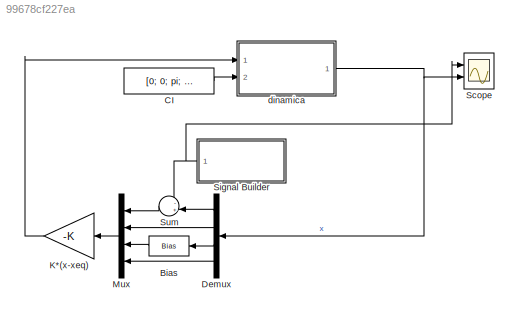
MODEL slx_99678cf227ea
KIND model
CONFIG AbsTol = auto
CONFIG EnableMultiTasking = off
CONFIG FixedStep = 0.001
CONFIG MaxStep = auto
CONFIG MinStep = auto
CONFIG RelTol = 1e-3
CONFIG SampleTimeConstraint = Unconstrained
CONFIG Solver = ode3
CONFIG SolverName = ode3
CONFIG StartTime = 0.0
CONFIG StopTime = 50
BLOCK [Bias] Bias
  Bias = -pi
  SaturateOnIntegerOverflow = off
BLOCK [Constant] CI
  Value = [0; 0; pi; 0]
BLOCK [Demux] Demux
  Ports = [1, 4]
BLOCK [Gain] K*(x-xeq)
  Gain = -K
  Multiplication = Matrix(K*u)
BLOCK [Mux] Mux
  DisplayOption = bar
  Ports = [4, 1]
BLOCK [Scope] Scope
  Floating = off
  NumInputPorts = 2
  Ports = [2]
  ScopeSpecificationString = Simulink.scopes.TimeScopeBlockCfg('CurrentConfiguration', extmgr.ConfigurationSet(extmgr.Configuration('Core','General UI',true),extmgr.Configuration('Core','Source UI',true),extmgr.Configuration('Sources','WiredSimulink',true),extmgr.Configuration('Visuals','Time Domain',true,'SerializedDisplays',{struct('MinYLimReal','-0.65441','MaxYLimReal','3.58994','YLabelReal','','MinYLimMag','0.00000','MaxY...<+1431ch>
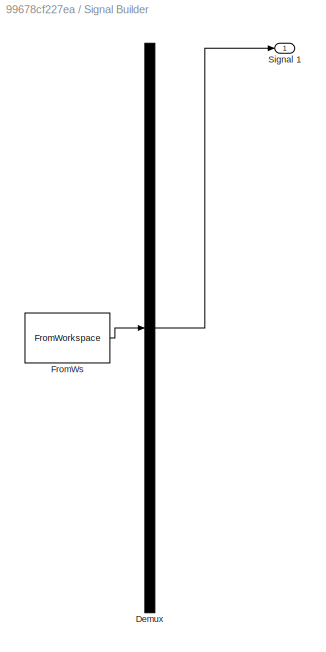
BLOCK [SubSystem] Signal Builder
  ClipboardFcn = sigbuilder_block('clipboard');
  CloseFcn = sigbuilder_block('close');
  ContinueFcn = sigbuilder_block('continue');
  CopyFcn = sigbuilder_block('copy');
  DeleteFcn = sigbuilder_block('delete');
  LoadFcn = sigbuilder_block('load');
  MaskHideContents = on
  ModelCloseFcn = sigbuilder_block('modelClose');
  NameChangeFcn = sigbuilder_block('namechange');
  OpenFcn = sigbuilder_block('open',[245.25 404.25 550.5 296.25 ]);
  PauseFcn = sigbuilder_block('pause');
  Ports = [0, 1]
  PreSaveFcn = sigbuilder_block('preSave');
  RequestExecContextInheritance = off
  StartFcn = sigbuilder_block('start');
  StopFcn = sigbuilder_block('stop');
  Tag = STV Subsys
BLOCK [Demux] Signal Builder/Demux
  DisplayOption = none
  Outputs = 1
  Ports = [1, 1]
  Tag = STV Demux
BLOCK [FromWorkspace] Signal Builder/FromWs
  Tag = STV FromWs
  VariableName = tuvar
BLOCK [Outport] Signal Builder/Signal 1
  Tag = STV Outport
BLOCK [Sum] Sum
  Inputs = -+|
  Ports = [2, 1]
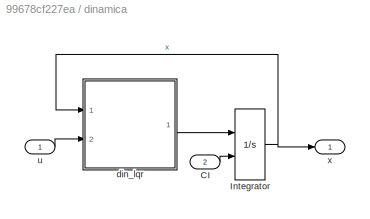
BLOCK [SubSystem] dinamica
  Ports = [2, 1]
  RequestExecContextInheritance = off
BLOCK [Inport] dinamica/CI
  Port = 2
BLOCK [Integrator] dinamica/Integrator
  InitialCondition = [0; 0; pi + 0.01; 0]
  InitialConditionSource = external
  Ports = [2, 1]
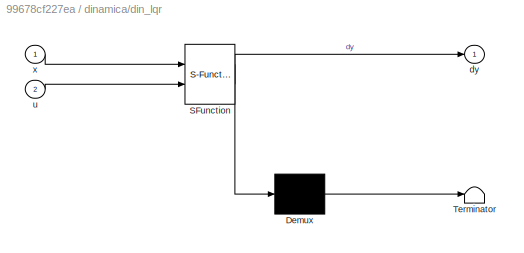
BLOCK [SubSystem] dinamica/din_lqr
  ErrorFcn = Stateflow.Translate.translate
  PermitHierarchicalResolution = ExplicitOnly
  Ports = [2, 1]
  RequestExecContextInheritance = off
  SFBlockType = MATLAB Function
  TreatAsAtomicUnit = on
BLOCK [Demux] dinamica/din_lqr/ Demux 
  Outputs = 1
  Ports = [1, 1]
BLOCK [S-Function] dinamica/din_lqr/ SFunction 
  EnableBusSupport = on
  FunctionName = sf_sfun
  PortCounts = [2 2]
  Ports = [2, 2]
  SFcnIsStateOwnerBlock = off
  SFunctionDeploymentMode = off
  Tag = Stateflow S-Function 2
BLOCK [Terminator] dinamica/din_lqr/ Terminator 
BLOCK [Outport] dinamica/din_lqr/dy
BLOCK [Inport] dinamica/din_lqr/u
  Port = 2
BLOCK [Inport] dinamica/din_lqr/x
BLOCK [Inport] dinamica/u
BLOCK [Outport] dinamica/x
LINE Bias:1 -> Mux:3
LINE CI:1 -> dinamica:2
LINE Demux:1 -> Sum:2
LINE Demux:2 -> Mux:2
LINE Demux:3 -> Bias:1
LINE Demux:4 -> Mux:4
LINE K*(x-xeq):1 -> dinamica:1
LINE Mux:1 -> K*(x-xeq):1
NET Signal Builder:1 -> Scope:1, Sum:1
LINE Sum:1 -> Mux:1
LINE dinamica/CI:1 -> dinamica/Integrator:2
NET dinamica/Integrator:1 -> dinamica/din_lqr:1, dinamica/x:1
LINE dinamica/din_lqr:1 -> dinamica/Integrator:1
LINE dinamica/u:1 -> dinamica/din_lqr:2
NET dinamica:1 -> Demux:1, Scope:2
note: NET lines group one-source signal fan-out (src -> all destinations, sorted); 1:1 wires keep LINE
CHART dinamica/din_lqr states=1 transitions=1
  STATE_LABEL 'eML_blk_kernel()'
  STATE_LABEL 'SCRIPT:\nfunction dy = carropend(x, u)\n    % carac. modelo\n    m = 1.0;\n    M = 5.0;\n    L = 2.0;\n    g = -10.0;\n    d = 1.0;\n    \n    % equ. diferencial\n    dy = fn_eq_diferencial(x,m,M,L,g,d,u);\n\n'
CHART  states=0 transitions=0
